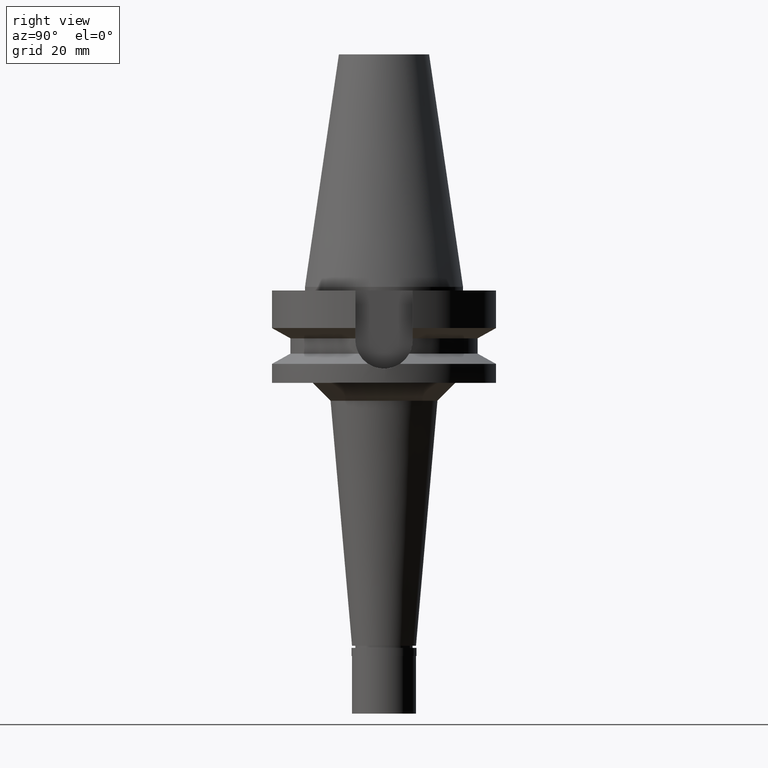
[diagram: clean part render]
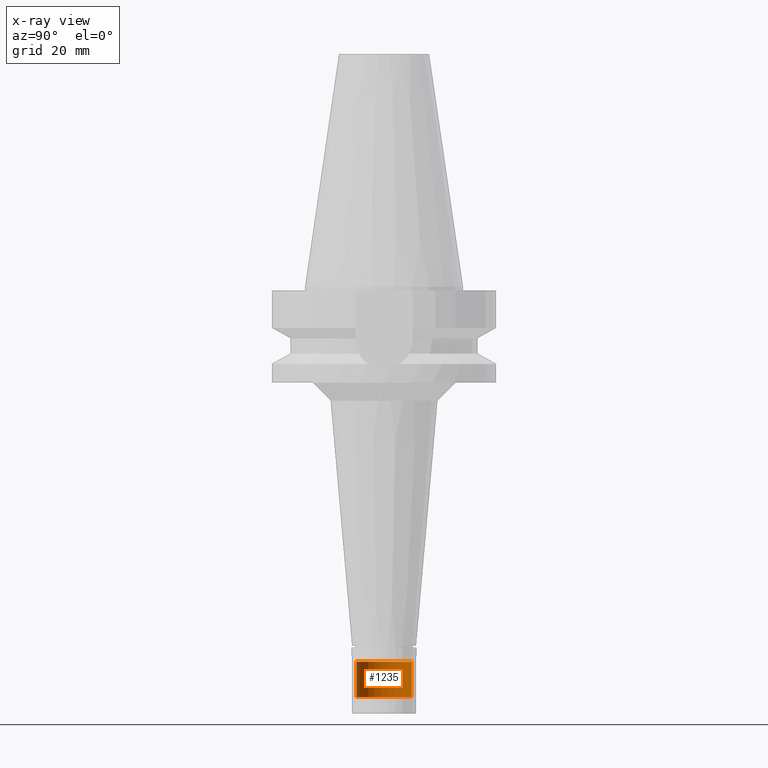
[diagram: x-ray — body ghosted, one internal face saturated and labeled with its STEP entity id]
A machine part, right view, then the same camera in x-ray: the body is ghosted and one INTERNAL B-rep face — a face not visible from any outside direction — is saturated and labeled: STEP entity #1235.
In plain terms, the highlighted cylindrical surface (edge-blend (fillet) strip) has radius 7.8 mm, axis along (0, 0, -1).
Its self-contained STEP definition (entity closure, byte-faithful):
#69 = ORIENTED_EDGE ( 'NONE', *, *, #1306, .T. ) ;
#115 = CARTESIAN_POINT ( 'NONE',  ( 0.0000000000000000000, 7.799999999999999822, -105.3999999999999915 ) ) ;
#153 = EDGE_CURVE ( 'NONE', #2024, #2648, #1676, .T. ) ;
#182 = DIRECTION ( 'NONE',  ( 0.0000000000000000000, -1.000000000000000000, 0.0000000000000000000 ) ) ;
#525 = VECTOR ( 'NONE', #2661, 1000.000000000000000 ) ;
#567 = EDGE_LOOP ( 'NONE', ( #1433, #875, #2186, #69 ) ) ;
#602 = CARTESIAN_POINT ( 'NONE',  ( 0.0000000000000000000, 2.136273876432999670E-14, -105.3999999999999915 ) ) ;
#636 = DIRECTION ( 'NONE',  ( 0.0000000000000000000, 0.0000000000000000000, -1.000000000000000000 ) ) ;
#723 = DIRECTION ( 'NONE',  ( 0.0000000000000000000, 0.0000000000000000000, 1.000000000000000000 ) ) ;
#802 = CARTESIAN_POINT ( 'NONE',  ( 0.0000000000000000000, 7.799999999999999822, -105.3999999999999915 ) ) ;
#875 = ORIENTED_EDGE ( 'NONE', *, *, #153, .F. ) ;
#918 = CARTESIAN_POINT ( 'NONE',  ( 0.0000000000000000000, 7.799999999999999822, -115.4000000000000057 ) ) ;
#1101 = EDGE_CURVE ( 'NONE', #2438, #2648, #1674, .T. ) ;
#1235 = ADVANCED_FACE ( 'NONE', ( #2202 ), #2451, .T. ) ;
#1238 = CARTESIAN_POINT ( 'NONE',  ( 0.0000000000000000000, -7.799999999999999822, -105.3999999999999915 ) ) ;
#1276 = CARTESIAN_POINT ( 'NONE',  ( 0.0000000000000000000, -7.799999999999999822, -115.4000000000000057 ) ) ;
#1306 = EDGE_CURVE ( 'NONE', #1318, #2438, #1749, .T. ) ;
#1318 = VERTEX_POINT ( 'NONE', #802 ) ;
#1433 = ORIENTED_EDGE ( 'NONE', *, *, #1101, .T. ) ;
#1561 = CIRCLE ( 'NONE', #2137, 7.799999999999999822 ) ;
#1674 = CIRCLE ( 'NONE', #2158, 7.799999999999999822 ) ;
#1676 = LINE ( 'NONE', #1935, #2248 ) ;
#1749 = LINE ( 'NONE', #115, #525 ) ;
#1930 = DIRECTION ( 'NONE',  ( 0.0000000000000000000, -1.000000000000000000, 0.0000000000000000000 ) ) ;
#1935 = CARTESIAN_POINT ( 'NONE',  ( 0.0000000000000000000, -7.799999999999999822, -105.3999999999999915 ) ) ;
#2024 = VERTEX_POINT ( 'NONE', #1238 ) ;
#2137 = AXIS2_PLACEMENT_3D ( 'NONE', #602, #2241, #182 ) ;
#2158 = AXIS2_PLACEMENT_3D ( 'NONE', #2501, #723, #2292 ) ;
#2186 = ORIENTED_EDGE ( 'NONE', *, *, #2824, .T. ) ;
#2202 = FACE_OUTER_BOUND ( 'NONE', #567, .T. ) ;
#2241 = DIRECTION ( 'NONE',  ( 0.0000000000000000000, 0.0000000000000000000, -1.000000000000000000 ) ) ;
#2242 = AXIS2_PLACEMENT_3D ( 'NONE', #2679, #636, #1930 ) ;
#2248 = VECTOR ( 'NONE', #2611, 1000.000000000000000 ) ;
#2292 = DIRECTION ( 'NONE',  ( 0.0000000000000000000, 1.000000000000000000, 0.0000000000000000000 ) ) ;
#2438 = VERTEX_POINT ( 'NONE', #918 ) ;
#2451 = CYLINDRICAL_SURFACE ( 'NONE', #2242, 7.799999999999999822 ) ;
#2501 = CARTESIAN_POINT ( 'NONE',  ( 0.0000000000000000000, 2.136273876432999670E-14, -115.4000000000000057 ) ) ;
#2611 = DIRECTION ( 'NONE',  ( 0.0000000000000000000, 0.0000000000000000000, -1.000000000000000000 ) ) ;
#2648 = VERTEX_POINT ( 'NONE', #1276 ) ;
#2661 = DIRECTION ( 'NONE',  ( 0.0000000000000000000, 0.0000000000000000000, -1.000000000000000000 ) ) ;
#2679 = CARTESIAN_POINT ( 'NONE',  ( 0.0000000000000000000, 2.136273876432999670E-14, 74.44000000000001194 ) ) ;
#2824 = EDGE_CURVE ( 'NONE', #2024, #1318, #1561, .T. ) ;